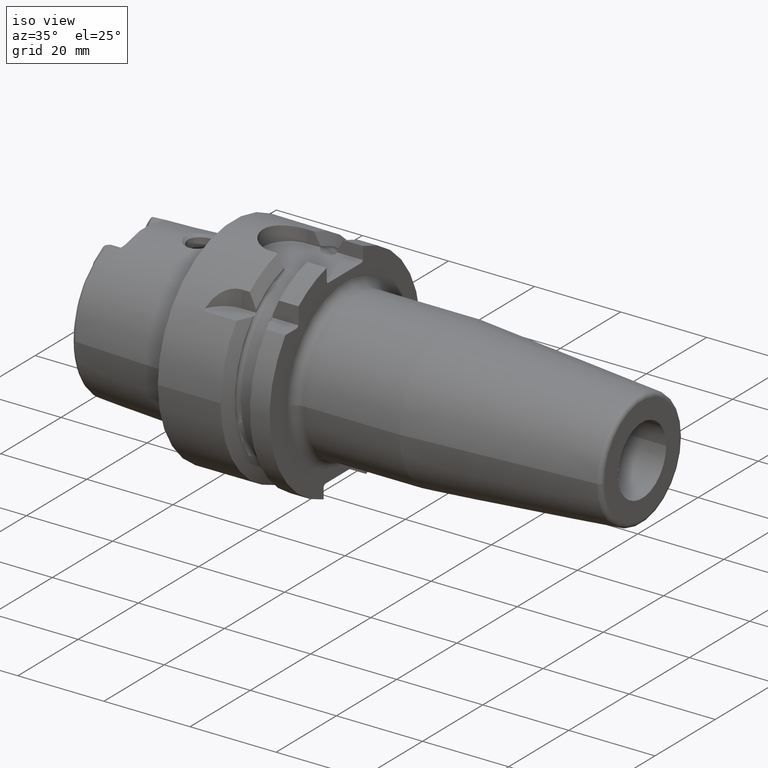
[diagram: clean part render]
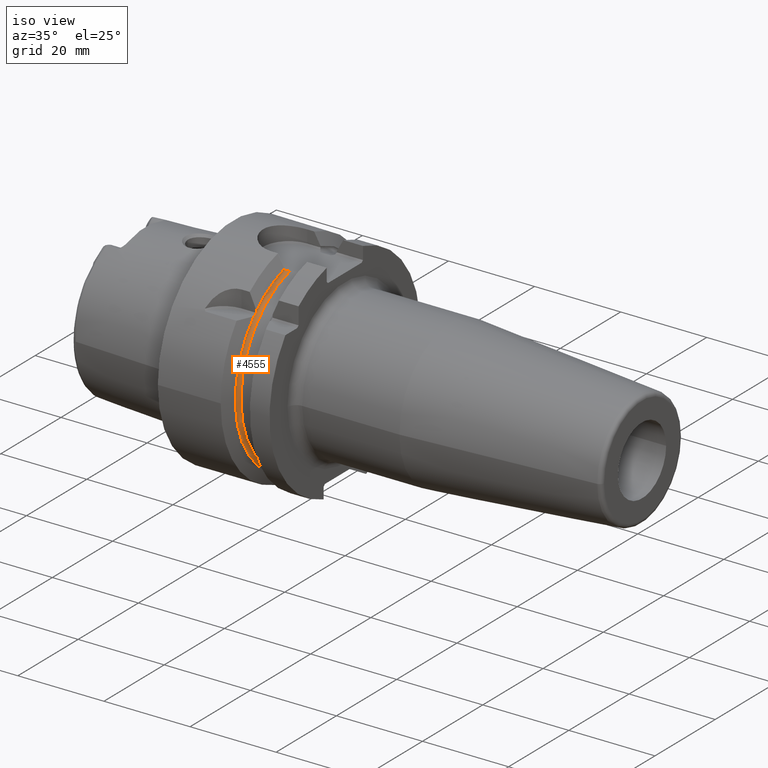
[diagram: same view with one face highlighted and labeled with its STEP entity id]
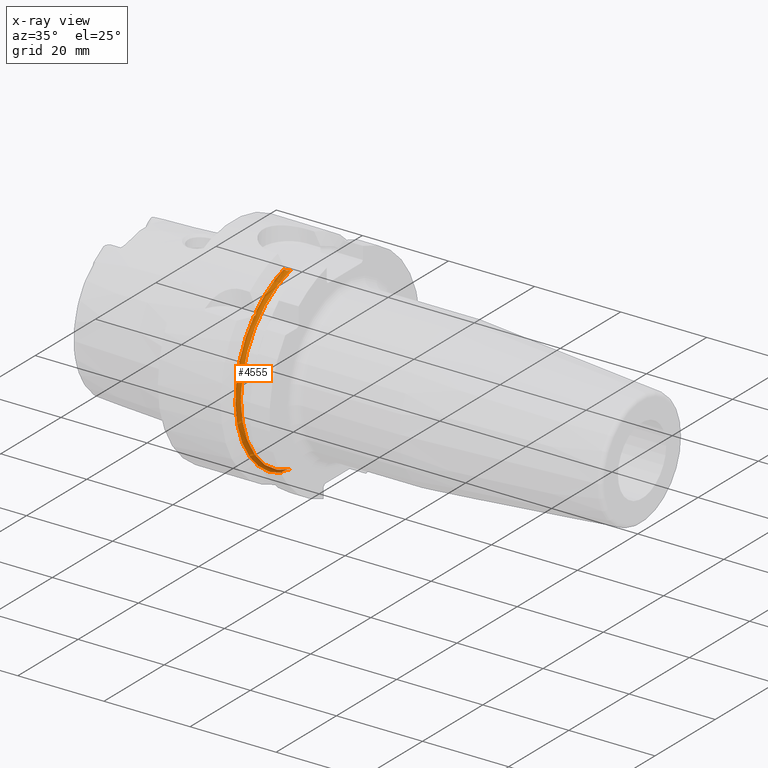
[diagram: x-ray of the same camera — body ghosted, the highlighted face saturated]
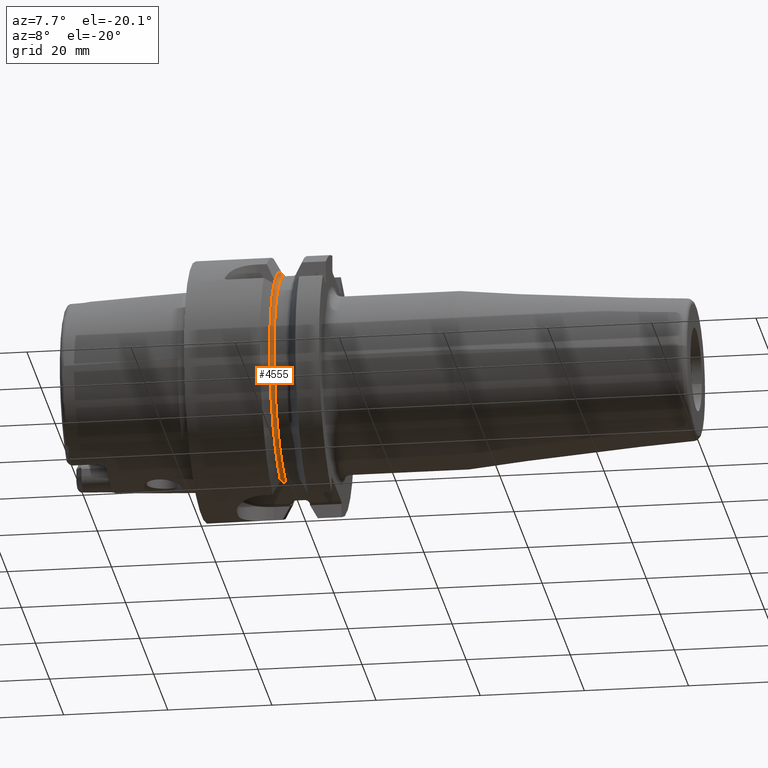
[diagram: same view with one face highlighted and labeled with its STEP entity id]
A machine part, iso view. The second image highlights one B-rep face of the part: STEP entity #4555.
The next image is the same camera in x-ray: the body ghosted, the highlighted face saturated — about 3% of this face is hidden behind the body in this view.
A second angle (auxiliary view) of the same face is appended — the face is thin or edge-on in the first view.
In plain terms, the highlighted toroidal blend (fillet) surface has major radius 22.225 mm and minor (blend) radius 0.75 mm.
Its self-contained STEP definition (entity closure, byte-faithful):
#1187=CARTESIAN_POINT('',(1.60875E1,-6.0175E0,2.139486664483E1));
#1188=CARTESIAN_POINT('',(1.60875E1,-6.0175E0,2.137896797473E1));
#1189=CARTESIAN_POINT('',(1.608843608719E1,-6.0175E0,2.134725814109E1));
#1190=CARTESIAN_POINT('',(1.609122292121E1,-6.0175E0,2.131572365833E1));
#1191=CARTESIAN_POINT('',(1.609307889201E1,-6.0175E0,2.13E1));
#1219=CARTESIAN_POINT('',(1.60875E1,0.E0,0.E0));
#1220=DIRECTION('',(-1.E0,0.E0,0.E0));
#1221=DIRECTION('',(0.E0,-3.085695971594E-1,-9.512017681380E-1));
#1222=AXIS2_PLACEMENT_3D('',#1219,#1220,#1221);
#1224=CARTESIAN_POINT('',(1.60875E1,0.E0,0.E0));
#1225=DIRECTION('',(1.E0,0.E0,0.E0));
#1226=DIRECTION('',(0.E0,-2.707536557930E-1,9.626486679338E-1));
#1227=AXIS2_PLACEMENT_3D('',#1224,#1225,#1226);
#1251=CARTESIAN_POINT('',(1.68375E1,0.E0,0.E0));
#1252=DIRECTION('',(-1.E0,0.E0,0.E0));
#1253=DIRECTION('',(0.E0,-2.298558733442E-1,-9.732246798603E-1));
#1254=AXIS2_PLACEMENT_3D('',#1251,#1252,#1253);
#1301=CARTESIAN_POINT('',(1.68375E1,-4.936154880066E0,-2.09E1));
#1302=CARTESIAN_POINT('',(1.681345606457E1,-4.936154880066E0,-2.09E1));
#1303=CARTESIAN_POINT('',(1.676698530885E1,-4.945925133428E0,-2.09E1));
#1304=CARTESIAN_POINT('',(1.669960911009E1,-4.987608552877E0,-2.09E1));
#1305=CARTESIAN_POINT('',(1.664193161405E1,-5.044774109148E0,-2.09E1));
#1306=CARTESIAN_POINT('',(1.658737237837E1,-5.116767588353E0,-2.09E1));
#1307=CARTESIAN_POINT('',(1.653557172948E1,-5.202458913993E0,-2.09E1));
#1308=CARTESIAN_POINT('',(1.648556128151E1,-5.301966030164E0,-2.09E1));
#1309=CARTESIAN_POINT('',(1.643873721871E1,-5.411146947143E0,-2.09E1));
#1310=CARTESIAN_POINT('',(1.639376288385E1,-5.531573678958E0,-2.09E1));
#1311=CARTESIAN_POINT('',(1.634913192844E1,-5.668029679674E0,-2.09E1));
#1312=CARTESIAN_POINT('',(1.630446446036E1,-5.824082333451E0,-2.09E1));
#1313=CARTESIAN_POINT('',(1.625965026334E1,-6.004767270383E0,-2.09E1));
#1314=CARTESIAN_POINT('',(1.621744735973E1,-6.203990186122E0,-2.09E1));
#1315=CARTESIAN_POINT('',(1.618022700776E1,-6.413250850859E0,-2.09E1));
#1316=CARTESIAN_POINT('',(1.616020989583E1,-6.549426055627E0,-2.09E1));
#1317=CARTESIAN_POINT('',(1.615115688769E1,-6.6175E0,-2.09E1));
#1546=CARTESIAN_POINT('',(1.636596485273E1,-5.6175E0,2.09E1));
#1547=CARTESIAN_POINT('',(1.637723073093E1,-5.582409408806E0,2.09E1));
#1548=CARTESIAN_POINT('',(1.640088079254E1,-5.512208770329E0,2.09E1));
#1549=CARTESIAN_POINT('',(1.644127677987E1,-5.405169222578E0,2.09E1));
#1550=CARTESIAN_POINT('',(1.648542523065E1,-5.302559468502E0,2.09E1));
#1551=CARTESIAN_POINT('',(1.653267499575E1,-5.208006963190E0,2.09E1));
#1552=CARTESIAN_POINT('',(1.658270514026E1,-5.123923103323E0,2.09E1));
#1553=CARTESIAN_POINT('',(1.663659931211E1,-5.050897729353E0,2.09E1));
#1554=CARTESIAN_POINT('',(1.669594649704E1,-4.990432118684E0,2.09E1));
#1555=CARTESIAN_POINT('',(1.676415776210E1,-4.946912528541E0,2.09E1));
#1556=CARTESIAN_POINT('',(1.681240342288E1,-4.936154880066E0,2.09E1));
#1557=CARTESIAN_POINT('',(1.68375E1,-4.936154880066E0,2.09E1));
#1592=CARTESIAN_POINT('',(1.615115688769E1,-6.6175E0,-2.09E1));
#1593=CARTESIAN_POINT('',(1.613009446654E1,-6.655587395161E0,
-2.093808739516E1));
#1594=CARTESIAN_POINT('',(1.609861081174E1,-6.733776765954E0,
-2.101627676595E1));
#1595=CARTESIAN_POINT('',(1.60875E1,-6.815903497270E0,-2.109840349727E1));
#1596=CARTESIAN_POINT('',(1.60875E1,-6.857959296867E0,-2.114045929687E1));
#1751=CARTESIAN_POINT('',(1.60875E1,-1.607258924380E1,1.535E1));
#1752=CARTESIAN_POINT('',(1.60875E1,-1.601750661286E1,1.535E1));
#1753=CARTESIAN_POINT('',(1.609380833660E1,-1.590866065154E1,1.535E1));
#1754=CARTESIAN_POINT('',(1.611211056121E1,-1.580244426033E1,1.535E1));
#1755=CARTESIAN_POINT('',(1.612433689420E1,-1.575E1,1.535E1));
#1798=CARTESIAN_POINT('',(1.612433689420E1,-1.535E1,1.575E1));
#1799=CARTESIAN_POINT('',(1.611210735593E1,-1.535E1,1.580245800922E1));
#1800=CARTESIAN_POINT('',(1.609380509225E1,-1.535E1,1.590868907379E1));
#1801=CARTESIAN_POINT('',(1.60875E1,-1.535E1,1.601752073379E1));
#1802=CARTESIAN_POINT('',(1.60875E1,-1.535E1,1.607258924380E1));
#1836=CARTESIAN_POINT('',(1.612433689420E1,-1.575E1,1.535E1));
#1837=CARTESIAN_POINT('',(1.612460002688E1,-1.570555764146E1,1.539444235854E1));
#1838=CARTESIAN_POINT('',(1.612495361783E1,-1.561667153260E1,1.548332846740E1));
#1839=CARTESIAN_POINT('',(1.612495364060E1,-1.548333732897E1,1.561666267103E1));
#1840=CARTESIAN_POINT('',(1.612460004936E1,-1.539444615632E1,1.570555384368E1));
#1841=CARTESIAN_POINT('',(1.612433689420E1,-1.535E1,1.575E1));
#1858=CARTESIAN_POINT('',(1.609307889201E1,-6.0175E0,2.13E1));
#1859=CARTESIAN_POINT('',(1.609765293737E1,-5.987285071193E0,2.126978507119E1));
#1860=CARTESIAN_POINT('',(1.611225736079E1,-5.927804008155E0,2.121030400815E1));
#1861=CARTESIAN_POINT('',(1.615114340795E1,-5.840436657617E0,2.112293665762E1));
#1862=CARTESIAN_POINT('',(1.620645770669E1,-5.757996480999E0,2.104049648100E1));
#1863=CARTESIAN_POINT('',(1.627815026124E1,-5.681966578538E0,2.096446657854E1));
#1864=CARTESIAN_POINT('',(1.633498749583E1,-5.637939981423E0,2.092043998142E1));
#1865=CARTESIAN_POINT('',(1.636596485273E1,-5.6175E0,2.09E1));
#2925=CARTESIAN_POINT('',(1.60875E1,-6.0175E0,2.139486664483E1));
#2927=VERTEX_POINT('',#2925);
#2929=VERTEX_POINT('',#1191);
#2969=CARTESIAN_POINT('',(1.60875E1,-1.535E1,1.607258924380E1));
#2970=VERTEX_POINT('',#2969);
#2977=CARTESIAN_POINT('',(1.68375E1,-4.936154880066E0,-2.09E1));
#2978=CARTESIAN_POINT('',(1.68375E1,-4.936154880066E0,2.09E1));
#2979=VERTEX_POINT('',#2977);
#2980=VERTEX_POINT('',#2978);
#2996=VERTEX_POINT('',#1546);
#3000=VERTEX_POINT('',#1317);
#3004=CARTESIAN_POINT('',(1.60875E1,-1.607258924380E1,1.535E1));
#3006=VERTEX_POINT('',#3004);
#3007=VERTEX_POINT('',#1755);
#3014=VERTEX_POINT('',#1798);
#3018=CARTESIAN_POINT('',(1.60875E1,-6.857959296867E0,-2.114045929687E1));
#3019=VERTEX_POINT('',#3018);
#4529=CARTESIAN_POINT('',(1.68375E1,0.E0,0.E0));
#4530=DIRECTION('',(1.E0,0.E0,0.E0));
#4531=DIRECTION('',(0.E0,-1.E0,0.E0));
#4532=AXIS2_PLACEMENT_3D('',#4529,#4530,#4531);
#4533=TOROIDAL_SURFACE('',#4532,2.2225E1,7.5E-1);
#4535=ORIENTED_EDGE('',*,*,#4534,.F.);
#4537=ORIENTED_EDGE('',*,*,#4536,.T.);
#4539=ORIENTED_EDGE('',*,*,#4538,.T.);
#4540=ORIENTED_EDGE('',*,*,#4522,.T.);
#4542=ORIENTED_EDGE('',*,*,#4541,.T.);
#4544=ORIENTED_EDGE('',*,*,#4543,.T.);
#4546=ORIENTED_EDGE('',*,*,#4545,.T.);
#4547=ORIENTED_EDGE('',*,*,#4484,.F.);
#4548=ORIENTED_EDGE('',*,*,#4456,.T.);
#4550=ORIENTED_EDGE('',*,*,#4549,.T.);
#4552=ORIENTED_EDGE('',*,*,#4551,.T.);
#4553=EDGE_LOOP('',(#4535,#4537,#4539,#4540,#4542,#4544,#4546,#4547,#4548,#4550,
#4552));
#4554=FACE_OUTER_BOUND('',#4553,.F.);
#4555=ADVANCED_FACE('',(#4554),#4533,.F.);
#1192=B_SPLINE_CURVE_WITH_KNOTS('',3,(#1187,#1188,#1189,#1190,#1191),
.UNSPECIFIED.,.F.,.F.,(4,1,4),(0.E0,5.E-1,1.E0),.UNSPECIFIED.);
#1223=CIRCLE('',#1222,2.2225E1);
#1228=CIRCLE('',#1227,2.2225E1);
#1255=CIRCLE('',#1254,2.1475E1);
#1318=B_SPLINE_CURVE_WITH_KNOTS('',3,(#1301,#1302,#1303,#1304,#1305,#1306,#1307,
#1308,#1309,#1310,#1311,#1312,#1313,#1314,#1315,#1316,#1317),.UNSPECIFIED.,.F.,
.F.,(4,1,1,1,1,1,1,1,1,1,1,1,1,1,4),(0.E0,7.142857142857E-2,1.428571428571E-1,
2.142857142857E-1,2.857142857143E-1,3.571428571429E-1,4.285714285714E-1,5.E-1,
5.714285714286E-1,6.428571428571E-1,7.142857142857E-1,7.857142857143E-1,
8.571428571429E-1,9.285714285714E-1,1.E0),.UNSPECIFIED.);
#1558=B_SPLINE_CURVE_WITH_KNOTS('',3,(#1546,#1547,#1548,#1549,#1550,#1551,#1552,
#1553,#1554,#1555,#1556,#1557),.UNSPECIFIED.,.F.,.F.,(4,1,1,1,1,1,1,1,1,4),
(0.E0,1.111111111111E-1,2.222222222222E-1,3.333333333333E-1,4.444444444444E-1,
5.555555555556E-1,6.666666666667E-1,7.777777777778E-1,8.888888888889E-1,1.E0),
.UNSPECIFIED.);
#1597=B_SPLINE_CURVE_WITH_KNOTS('',3,(#1592,#1593,#1594,#1595,#1596),
.UNSPECIFIED.,.F.,.F.,(4,1,4),(0.E0,5.E-1,1.E0),.UNSPECIFIED.);
#1756=B_SPLINE_CURVE_WITH_KNOTS('',3,(#1751,#1752,#1753,#1754,#1755),
.UNSPECIFIED.,.F.,.F.,(4,1,4),(0.E0,5.E-1,1.E0),.UNSPECIFIED.);
#1803=B_SPLINE_CURVE_WITH_KNOTS('',3,(#1798,#1799,#1800,#1801,#1802),
.UNSPECIFIED.,.F.,.F.,(4,1,4),(0.E0,5.E-1,1.E0),.UNSPECIFIED.);
#1842=B_SPLINE_CURVE_WITH_KNOTS('',3,(#1836,#1837,#1838,#1839,#1840,#1841),
.UNSPECIFIED.,.F.,.F.,(4,1,1,4),(0.E0,3.333333333333E-1,6.666666666667E-1,1.E0),
.UNSPECIFIED.);
#1866=B_SPLINE_CURVE_WITH_KNOTS('',3,(#1858,#1859,#1860,#1861,#1862,#1863,#1864,
#1865),.UNSPECIFIED.,.F.,.F.,(4,1,1,1,1,4),(0.E0,2.E-1,4.E-1,6.E-1,8.E-1,1.E0),
.UNSPECIFIED.);
#4456=EDGE_CURVE('',#2927,#2929,#1192,.T.);
#4484=EDGE_CURVE('',#2927,#2970,#1228,.T.);
#4522=EDGE_CURVE('',#3019,#3006,#1223,.T.);
#4534=EDGE_CURVE('',#2979,#2980,#1255,.T.);
#4536=EDGE_CURVE('',#2979,#3000,#1318,.T.);
#4538=EDGE_CURVE('',#3000,#3019,#1597,.T.);
#4541=EDGE_CURVE('',#3006,#3007,#1756,.T.);
#4543=EDGE_CURVE('',#3007,#3014,#1842,.T.);
#4545=EDGE_CURVE('',#3014,#2970,#1803,.T.);
#4549=EDGE_CURVE('',#2929,#2996,#1866,.T.);
#4551=EDGE_CURVE('',#2996,#2980,#1558,.T.);